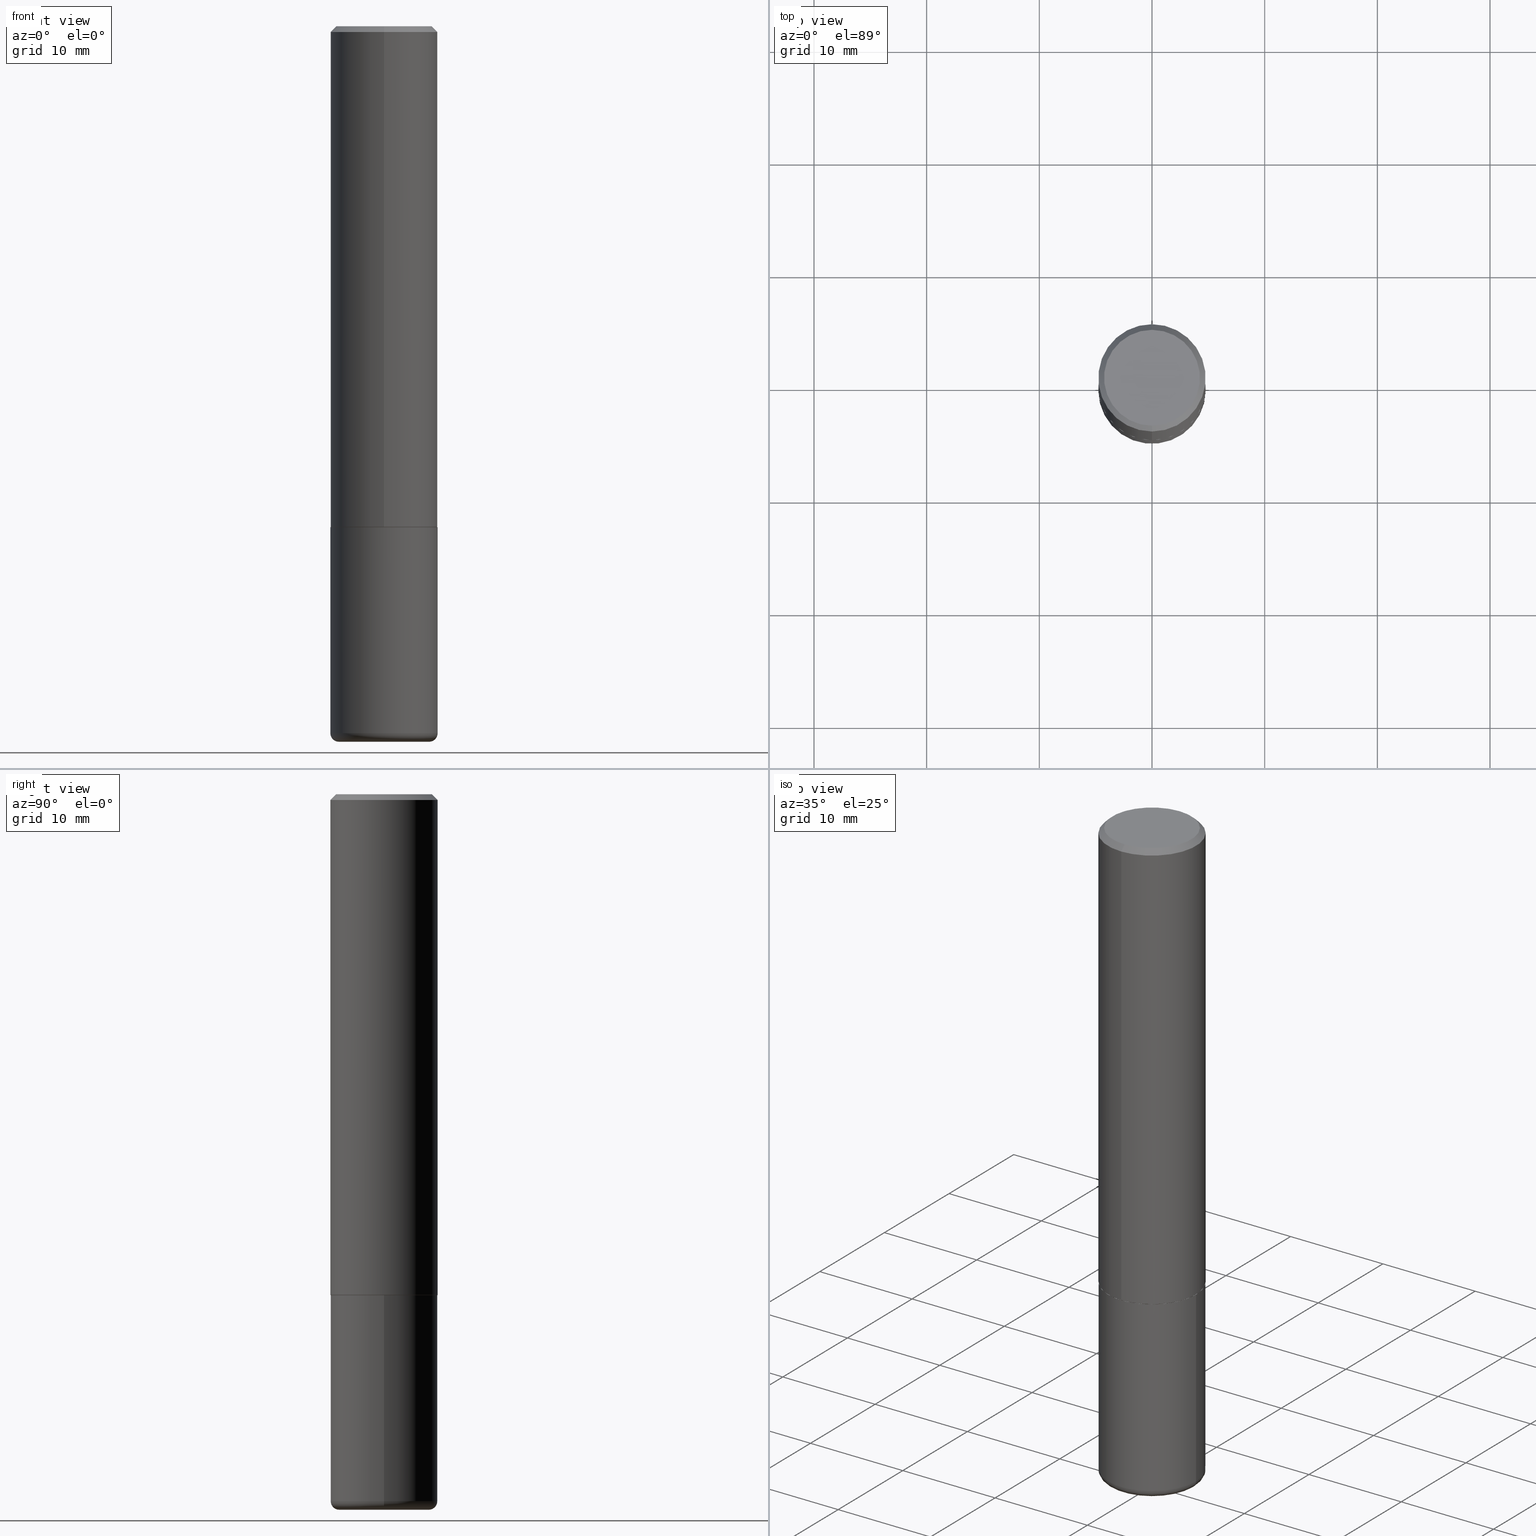
[diagram: canonical four-view strip — front | top / right | iso, engineering-drawing reading convention]
A machine part, canonical four-view strip (front | top / right | iso — engineering-drawing reading convention). The complete STEP part file that produces these views, byte-faithful:
ISO-10303-21;
HEADER;
FILE_DESCRIPTION (( 'STEP AP203' ),
    '1' );
FILE_NAME ('37175.STEP',
    '2024-03-01T21:28:06',
    ( '' ),
    ( '' ),
    'SwSTEP 2.0',
    'SolidWorks 2023',
    '' );
FILE_SCHEMA (( 'CONFIG_CONTROL_DESIGN' ));
ENDSEC;

DATA;
#1 = DIRECTION ( 'NONE',  ( -2.444650961945200818E-29, 3.492652538343536856E-15, 1.000000000000000000 ) ) ;
#2 = ADVANCED_FACE ( 'NONE', ( #392 ), #386, .T. ) ;
#3 = DATE_AND_TIME ( #26, #142 ) ;
#4 = ORIENTED_EDGE ( 'NONE', *, *, #32, .T. ) ;
#5 = EDGE_CURVE ( 'NONE', #122, #214, #298, .T. ) ;
#6 = AXIS2_PLACEMENT_3D ( 'NONE', #69, #173, #301 ) ;
#7 = CARTESIAN_POINT ( 'NONE',  ( 4.278139183404100941E-29, -6.112141942101189794E-15, -1.750000000000000000 ) ) ;
#8 = DIRECTION ( 'NONE',  ( -2.444650961945200818E-29, 3.492652538343536856E-15, 1.000000000000000000 ) ) ;
#9 = FACE_OUTER_BOUND ( 'NONE', #223, .T. ) ;
#10 = CARTESIAN_POINT ( 'NONE',  ( 0.1875000000000000555, -9.933264409008746581E-15, -2.470000000000000195 ) ) ;
#11 = FACE_OUTER_BOUND ( 'NONE', #18, .T. ) ;
#12 = DIRECTION ( 'NONE',  ( -2.445468806185136597E-29, 3.491481338843145583E-15, 1.000000000000000000 ) ) ;
#13 = PLANE ( 'NONE',  #346 ) ;
#14 = ORIENTED_EDGE ( 'NONE', *, *, #231, .F. ) ;
#15 = DIRECTION ( 'NONE',  ( -2.444650961945200818E-29, 3.492652538343536856E-15, 1.000000000000000000 ) ) ;
#16 = ORIENTED_EDGE ( 'NONE', *, *, #283, .F. ) ;
#17 = DIRECTION ( 'NONE',  ( -2.445468806185136597E-29, 3.491481338843145583E-15, 1.000000000000000000 ) ) ;
#18 = EDGE_LOOP ( 'NONE', ( #315, #280 ) ) ;
#19 = CARTESIAN_POINT ( 'NONE',  ( -1.309305502066175797E-15, -0.1875000000000001110, 6.548723509394135303E-16 ) ) ;
#20 = AXIS2_PLACEMENT_3D ( 'NONE', #359, #351, #259 ) ;
#21 = CONICAL_SURFACE ( 'NONE', #367, 0.1874999999999999722, 0.7853981633974469467 ) ;
#22 = ORIENTED_EDGE ( 'NONE', *, *, #220, .T. ) ;
#23 = PERSON_AND_ORGANIZATION ( #387, #105 ) ;
#24 = ORIENTED_EDGE ( 'NONE', *, *, #358, .T. ) ;
#25 = PRODUCT_RELATED_PRODUCT_CATEGORY ( 'detail', '', ( #240 ) ) ;
#26 = CALENDAR_DATE ( 2024, 1, 3 ) ;
#27 = DIRECTION ( 'NONE',  ( 7.105427357601001859E-15, 1.000000000000000000, -3.491481338843145583E-15 ) ) ;
#28 = CARTESIAN_POINT ( 'NONE',  ( 4.278139183404100941E-29, -6.112141942101189794E-15, -1.750000000000000000 ) ) ;
#29 = AXIS2_PLACEMENT_3D ( 'NONE', #410, #139, #370 ) ;
#30 = DATE_AND_TIME ( #254, #79 ) ;
#31 = DIRECTION ( 'NONE',  ( -4.851104656540957175E-15, -0.7071067811865490160, -0.7071067811865460184 ) ) ;
#32 = EDGE_CURVE ( 'NONE', #112, #409, #171, .T. ) ;
#33 = ORIENTED_EDGE ( 'NONE', *, *, #379, .F. ) ;
#34 = ORIENTED_EDGE ( 'NONE', *, *, #343, .F. ) ;
#35 = CARTESIAN_POINT ( 'NONE',  ( 4.275694532442156646E-29, -6.108649289562846914E-15, -1.749000000000000110 ) ) ;
#36 = DIRECTION ( 'NONE',  ( 2.444650961945200538E-29, -3.492652538343536856E-15, -1.000000000000000000 ) ) ;
#37 = FACE_OUTER_BOUND ( 'NONE', #411, .T. ) ;
#38 = AXIS2_PLACEMENT_3D ( 'NONE', #389, #27, #164 ) ;
#39 = AXIS2_PLACEMENT_3D ( 'NONE', #113, #17, #239 ) ;
#40 = LINE ( 'NONE', #98, #70 ) ;
#41 = CARTESIAN_POINT ( 'NONE',  ( 4.889301923890413792E-31, -6.985305076687091116E-17, -0.02000000000000005246 ) ) ;
#42 = LINE ( 'NONE', #206, #50 ) ;
#43 = AXIS2_PLACEMENT_3D ( 'NONE', #74, #267, #333 ) ;
#44 = ORIENTED_EDGE ( 'NONE', *, *, #32, .F. ) ;
#45 = CC_DESIGN_PERSON_AND_ORGANIZATION_ASSIGNMENT ( #153, #53, ( #157 ) ) ;
#46 = DIRECTION ( 'NONE',  ( -2.444650961945200818E-29, 3.492652538343536856E-15, 1.000000000000000000 ) ) ;
#47 = EDGE_CURVE ( 'NONE', #130, #88, #226, .T. ) ;
#48 = ORIENTED_EDGE ( 'NONE', *, *, #281, .F. ) ;
#49 = FACE_OUTER_BOUND ( 'NONE', #124, .T. ) ;
#50 = VECTOR ( 'NONE', #308, 39.37007874015748143 ) ;
#51 = VERTEX_POINT ( 'NONE', #357 ) ;
#52 = MANIFOLD_SOLID_BREP ( 'Body-Move/Copy2[2]', #57 ) ;
#53 = PERSON_AND_ORGANIZATION_ROLE ( 'classification_officer' ) ;
#54 = LINE ( 'NONE', #162, #238 ) ;
#55 = LINE ( 'NONE', #192, #261 ) ;
#56 = COORDINATED_UNIVERSAL_TIME_OFFSET ( 5, 0, .BEHIND. ) ;
#57 = CLOSED_SHELL ( 'NONE', ( #394, #318, #163, #260, #289, #71, #321, #266 ) ) ;
#58 = DIRECTION ( 'NONE',  ( -2.444650961945200818E-29, 3.492652538343536856E-15, 1.000000000000000000 ) ) ;
#59 = CONICAL_SURFACE ( 'NONE', #43, 0.1874999999999999722, 0.7853981633974469467 ) ;
#60 = CC_DESIGN_APPROVAL ( #336, ( #157 ) ) ;
#61 = PERSON_AND_ORGANIZATION_ROLE ( 'creator' ) ;
#62 = CARTESIAN_POINT ( 'NONE',  ( -1.286343374582161379E-15, -0.1875000000000000555, -0.01999999999999939673 ) ) ;
#63 = APPROVAL_STATUS ( 'not_yet_approved' ) ;
#64 = FACE_OUTER_BOUND ( 'NONE', #264, .T. ) ;
#65 = CARTESIAN_POINT ( 'NONE',  ( 6.040307951277287977E-29, -8.623958906942569995E-15, -2.470000000000000195 ) ) ;
#66 = EDGE_CURVE ( 'NONE', #277, #340, #55, .T. ) ;
#67 = DIRECTION ( 'NONE',  ( -2.445468806185136877E-29, 3.491481338843145188E-15, 1.000000000000000000 ) ) ;
#68 = DIRECTION ( 'NONE',  ( -6.982962677686266711E-15, -1.000000000000000000, 3.492652538343536856E-15 ) ) ;
#69 = CARTESIAN_POINT ( 'NONE',  ( 4.889301923890413792E-31, -6.985305076687091116E-17, -0.02000000000000005246 ) ) ;
#70 = VECTOR ( 'NONE', #328, 39.37007874015748143 ) ;
#71 = ADVANCED_FACE ( 'NONE', ( #64 ), #382, .T. ) ;
#72 = CC_DESIGN_APPROVAL ( #369, ( #129 ) ) ;
#73 = UNCERTAINTY_MEASURE_WITH_UNIT (LENGTH_MEASURE( 1.000000000000000082E-05 ), #81, 'distance_accuracy_value', 'NONE');
#74 = CARTESIAN_POINT ( 'NONE',  ( 4.889301923890413792E-31, -6.985305076687091116E-17, -0.02000000000000005246 ) ) ;
#75 = CARTESIAN_POINT ( 'NONE',  ( 0.000000000000000000, 0.000000000000000000, 0.000000000000000000 ) ) ;
#76 = CARTESIAN_POINT ( 'NONE',  ( 4.278139183404100941E-29, -6.112141942101189794E-15, -1.750000000000000000 ) ) ;
#77 = ORIENTED_EDGE ( 'NONE', *, *, #400, .F. ) ;
#78 = VECTOR ( 'NONE', #31, 39.37007874015748143 ) ;
#79 = LOCAL_TIME ( 16, 28, 6.000000000000000000, #187 ) ;
#80 = ORIENTED_EDGE ( 'NONE', *, *, #245, .T. ) ;
#81 =( CONVERSION_BASED_UNIT ( 'INCH', #337 ) LENGTH_UNIT ( ) NAMED_UNIT ( #278 ) );
#82 = VERTEX_POINT ( 'NONE', #325 ) ;
#83 = EDGE_CURVE ( 'NONE', #207, #409, #54, .T. ) ;
#84 =( LENGTH_UNIT ( ) NAMED_UNIT ( * ) SI_UNIT ( $, .METRE. ) );
#85 = ORIENTED_EDGE ( 'NONE', *, *, #379, .T. ) ;
#86 = CALENDAR_DATE ( 2024, 1, 3 ) ;
#87 = CIRCLE ( 'NONE', #268, 0.1864999999999999714 ) ;
#88 = VERTEX_POINT ( 'NONE', #290 ) ;
#89 = CC_DESIGN_SECURITY_CLASSIFICATION ( #157, ( #376 ) ) ;
#90 = CALENDAR_DATE ( 2024, 1, 3 ) ;
#91 = ORIENTED_EDGE ( 'NONE', *, *, #147, .T. ) ;
#92 = APPLICATION_CONTEXT ( 'configuration controlled 3d designs of mechanical parts and assemblies' ) ;
#93 = CARTESIAN_POINT ( 'NONE',  ( 0.1575000000000000289, -9.828519968843451634E-15, -2.500000000000000000 ) ) ;
#94 = DIRECTION ( 'NONE',  ( -2.445468806185136597E-29, 3.491481338843145583E-15, 1.000000000000000000 ) ) ;
#95 = AXIS2_PLACEMENT_3D ( 'NONE', #131, #198, #402 ) ;
#96 = CARTESIAN_POINT ( 'NONE',  ( 0.000000000000000000, 0.000000000000000000, 0.000000000000000000 ) ) ;
#97 = ORIENTED_EDGE ( 'NONE', *, *, #47, .F. ) ;
#98 = CARTESIAN_POINT ( 'NONE',  ( 1.332267629550188440E-15, 0.1875000000000001110, -6.548723509394135303E-16 ) ) ;
#99 = FACE_OUTER_BOUND ( 'NONE', #150, .T. ) ;
#100 = VECTOR ( 'NONE', #67, 39.37007874015748143 ) ;
#101 = CARTESIAN_POINT ( 'NONE',  ( 0.000000000000000000, 0.000000000000000000, 0.000000000000000000 ) ) ;
#102 = CYLINDRICAL_SURFACE ( 'NONE', #172, 0.1875000000000001110 ) ;
#103 = CC_DESIGN_PERSON_AND_ORGANIZATION_ASSIGNMENT ( #116, #195, ( #129 ) ) ;
#104 = AXIS2_PLACEMENT_3D ( 'NONE', #175, #149, #244 ) ;
#105 = ORGANIZATION ( 'UNSPECIFIED', 'UNSPECIFIED', '' ) ;
#106 = CARTESIAN_POINT ( 'NONE',  ( 1.332267629550210528E-15, 0.1874999999999941713, -1.749000000000000554 ) ) ;
#107 = CARTESIAN_POINT ( 'NONE',  ( 1.325162202192629242E-15, 0.1864999999999938651, -1.750000000000000444 ) ) ;
#108 = ORIENTED_EDGE ( 'NONE', *, *, #5, .T. ) ;
#109 = VERTEX_POINT ( 'NONE', #93 ) ;
#110 = AXIS2_PLACEMENT_3D ( 'NONE', #188, #291, #230 ) ;
#111 = AXIS2_PLACEMENT_3D ( 'NONE', #185, #314, #377 ) ;
#112 = VERTEX_POINT ( 'NONE', #294 ) ;
#113 = CARTESIAN_POINT ( 'NONE',  ( 6.040307951277287977E-29, -8.623958906942569995E-15, -2.470000000000000195 ) ) ;
#114 = EDGE_LOOP ( 'NONE', ( #320, #324, #250, #309 ) ) ;
#115 = CC_DESIGN_PERSON_AND_ORGANIZATION_ASSIGNMENT ( #388, #61, ( #376 ) ) ;
#116 = PERSON_AND_ORGANIZATION ( #387, #105 ) ;
#117 = EDGE_LOOP ( 'NONE', ( #186, #4 ) ) ;
#118 = DATE_AND_TIME ( #90, #313 ) ;
#119 = AXIS2_PLACEMENT_3D ( 'NONE', #233, #297, #270 ) ;
#120 = CARTESIAN_POINT ( 'NONE',  ( -1.286343374582161379E-15, -0.1875000000000000555, -0.01999999999999939673 ) ) ;
#121 = EDGE_CURVE ( 'NONE', #277, #292, #87, .T. ) ;
#122 = VERTEX_POINT ( 'NONE', #120 ) ;
#123 = DIRECTION ( 'NONE',  ( 0.000000000000000000, 0.000000000000000000, 1.000000000000000000 ) ) ;
#124 = EDGE_LOOP ( 'NONE', ( #285, #177 ) ) ;
#125 = ADVANCED_FACE ( 'NONE', ( #418 ), #274, .T. ) ;
#126 = DATE_AND_TIME ( #86, #247 ) ;
#127 = ORIENTED_EDGE ( 'NONE', *, *, #295, .T. ) ;
#128 = AXIS2_PLACEMENT_3D ( 'NONE', #35, #8, #237 ) ;
#129 = PRODUCT_DEFINITION ( 'UNKNOWN', '', #376, #401 ) ;
#130 = VERTEX_POINT ( 'NONE', #225 ) ;
#131 = CARTESIAN_POINT ( 'NONE',  ( 6.113672015462842613E-29, -8.728703347107864943E-15, -2.500000000000000000 ) ) ;
#132 = EDGE_CURVE ( 'NONE', #51, #122, #323, .T. ) ;
#133 = PLANE ( 'NONE',  #141 ) ;
#134 = CIRCLE ( 'NONE', #362, 0.02999999999999998848 ) ;
#135 =( GEOMETRIC_REPRESENTATION_CONTEXT ( 3 ) GLOBAL_UNCERTAINTY_ASSIGNED_CONTEXT ( ( #73 ) ) GLOBAL_UNIT_ASSIGNED_CONTEXT ( ( #81, #373, #407 ) ) REPRESENTATION_CONTEXT ( 'NONE', 'WORKASPACE' ) );
#136 = DIRECTION ( 'NONE',  ( -2.445468806185136597E-29, 3.491481338843145583E-15, 1.000000000000000000 ) ) ;
#137 = ADVANCED_FACE ( 'NONE', ( #11 ), #327, .T. ) ;
#138 = DIRECTION ( 'NONE',  ( -1.000000000000000000, 6.982962677686265922E-15, -4.876176775795935793E-29 ) ) ;
#139 = DIRECTION ( 'NONE',  ( -2.444650961945200818E-29, 3.492652538343536856E-15, 1.000000000000000000 ) ) ;
#140 = CC_DESIGN_DATE_AND_TIME_ASSIGNMENT ( #30, #319, ( #157 ) ) ;
#141 = AXIS2_PLACEMENT_3D ( 'NONE', #200, #36, #269 ) ;
#142 = LOCAL_TIME ( 16, 28, 6.000000000000000000, #322 ) ;
#143 = ORIENTED_EDGE ( 'NONE', *, *, #209, .F. ) ;
#144 = CARTESIAN_POINT ( 'NONE',  ( 0.1875000000000000278, -7.419397845041680468E-15, -1.750000000000000222 ) ) ;
#145 = ORIENTED_EDGE ( 'NONE', *, *, #83, .F. ) ;
#146 = DIRECTION ( 'NONE',  ( -1.000000000000000000, 6.982962677686265922E-15, -4.876176775795935793E-29 ) ) ;
#147 = EDGE_CURVE ( 'NONE', #340, #378, #246, .T. ) ;
#148 = CIRCLE ( 'NONE', #95, 0.1575000000000000289 ) ;
#149 = DIRECTION ( 'NONE',  ( -2.445468806185136597E-29, 3.491481338843145583E-15, 1.000000000000000000 ) ) ;
#150 = EDGE_LOOP ( 'NONE', ( #305, #255 ) ) ;
#151 = APPROVAL_ROLE ( '' ) ;
#152 = EDGE_LOOP ( 'NONE', ( #91, #180, #212, #406 ) ) ;
#153 = PERSON_AND_ORGANIZATION ( #387, #105 ) ;
#154 = DIRECTION ( 'NONE',  ( -2.445468806185136877E-29, 3.491481338843145188E-15, 1.000000000000000000 ) ) ;
#155 = APPROVAL_STATUS ( 'not_yet_approved' ) ;
#156 = AXIS2_PLACEMENT_3D ( 'NONE', #249, #46, #344 ) ;
#157 = SECURITY_CLASSIFICATION ( '', '', #347 ) ;
#158 = DIRECTION ( 'NONE',  ( -2.444650961945200818E-29, 3.492652538343536856E-15, 1.000000000000000000 ) ) ;
#159 = DATE_TIME_ROLE ( 'creation_date' ) ;
#160 = ORIENTED_EDGE ( 'NONE', *, *, #272, .F. ) ;
#161 = APPROVAL_STATUS ( 'not_yet_approved' ) ;
#162 = CARTESIAN_POINT ( 'NONE',  ( 0.1875000000000000555, -1.309305502066175205E-15, 9.142831454617382414E-30 ) ) ;
#163 = ADVANCED_FACE ( 'NONE', ( #37 ), #59, .T. ) ;
#164 = DIRECTION ( 'NONE',  ( -1.000000000000000000, 7.105427357600993970E-15, 0.000000000000000000 ) ) ;
#165 = AXIS2_PLACEMENT_3D ( 'NONE', #352, #94, #229 ) ;
#166 = LOCAL_TIME ( 16, 28, 6.000000000000000000, #284 ) ;
#167 = FACE_OUTER_BOUND ( 'NONE', #183, .T. ) ;
#168 = CARTESIAN_POINT ( 'NONE',  ( 5.943167387624159977E-45, -8.490953917474353626E-31, -2.431090360194079171E-16 ) ) ;
#169 = CC_DESIGN_PERSON_AND_ORGANIZATION_ASSIGNMENT ( #380, #219, ( #376 ) ) ;
#170 = DIRECTION ( 'NONE',  ( 1.000000000000000000, -6.982962677686265922E-15, 0.000000000000000000 ) ) ;
#171 = CIRCLE ( 'NONE', #20, 0.1875000000000000278 ) ;
#172 = AXIS2_PLACEMENT_3D ( 'NONE', #101, #365, #68 ) ;
#173 = DIRECTION ( 'NONE',  ( -2.444650961945200818E-29, 3.492652538343536856E-15, 1.000000000000000000 ) ) ;
#174 = DIRECTION ( 'NONE',  ( 6.982962677686266711E-15, 1.000000000000000000, -3.483106191921935949E-15 ) ) ;
#175 = CARTESIAN_POINT ( 'NONE',  ( 6.113672015462842613E-29, -8.728703347107864943E-15, -2.500000000000000000 ) ) ;
#176 = PRODUCT_DEFINITION_SHAPE ( 'NONE', 'NONE',  #129 ) ;
#177 = ORIENTED_EDGE ( 'NONE', *, *, #295, .F. ) ;
#178 = CC_DESIGN_APPROVAL ( #196, ( #376 ) ) ;
#179 = DIRECTION ( 'NONE',  ( 1.000000000000000000, -6.982962677686270655E-15, 0.000000000000000000 ) ) ;
#180 = ORIENTED_EDGE ( 'NONE', *, *, #209, .T. ) ;
#181 = DIRECTION ( 'NONE',  ( 2.438088387897960049E-29, -3.491481338843145188E-15, -1.000000000000000000 ) ) ;
#182 = ORIENTED_EDGE ( 'NONE', *, *, #66, .F. ) ;
#183 = EDGE_LOOP ( 'NONE', ( #251, #16, #345, #342 ) ) ;
#184 = AXIS2_PLACEMENT_3D ( 'NONE', #302, #12, #296 ) ;
#185 = CARTESIAN_POINT ( 'NONE',  ( 4.278139183404102062E-29, -6.112141942101190583E-15, -1.750000000000000222 ) ) ;
#186 = ORIENTED_EDGE ( 'NONE', *, *, #272, .T. ) ;
#187 = COORDINATED_UNIVERSAL_TIME_OFFSET ( 5, 0, .BEHIND. ) ;
#188 = CARTESIAN_POINT ( 'NONE',  ( 0.000000000000000000, 0.000000000000000000, 0.000000000000000000 ) ) ;
#189 = ORIENTED_EDGE ( 'NONE', *, *, #242, .T. ) ;
#190 = DIRECTION ( 'NONE',  ( 1.000000000000000000, 0.000000000000000000, 0.000000000000000000 ) ) ;
#191 = AXIS2_PLACEMENT_3D ( 'NONE', #363, #399, #138 ) ;
#192 = CARTESIAN_POINT ( 'NONE',  ( -1.302322539388445804E-15, -0.1865000000000060776, -1.749999999999999334 ) ) ;
#193 = APPROVAL_ROLE ( '' ) ;
#194 = EDGE_LOOP ( 'NONE', ( #248, #85, #279, #44 ) ) ;
#195 = PERSON_AND_ORGANIZATION_ROLE ( 'creator' ) ;
#196 = APPROVAL ( #155, 'UNSPECIFIED' ) ;
#197 = DIRECTION ( 'NONE',  ( -4.937700262165812586E-15, -0.7071067811867262076, 0.7071067811863689379 ) ) ;
#198 = DIRECTION ( 'NONE',  ( -2.445468806185136597E-29, 3.491481338843145583E-15, 1.000000000000000000 ) ) ;
#199 = CIRCLE ( 'NONE', #6, 0.1874999999999999722 ) ;
#200 = CARTESIAN_POINT ( 'NONE',  ( 1.169646248512450976E-15, 0.1675000000000002320, -7.065738181822472063E-16 ) ) ;
#201 = CARTESIAN_POINT ( 'NONE',  ( 1.328714915871430535E-15, 0.1864999999999938651, -1.750000000000000444 ) ) ;
#202 = DIRECTION ( 'NONE',  ( -6.982962677686265922E-15, -1.000000000000000000, 2.929595703661408850E-15 ) ) ;
#203 = CIRCLE ( 'NONE', #119, 0.1675000000000002320 ) ;
#204 = DIRECTION ( 'NONE',  ( 1.000000000000000000, -6.982962677686267499E-15, 4.883557194083113462E-29 ) ) ;
#205 = CARTESIAN_POINT ( 'NONE',  ( 0.1575000000000000289, -9.723775528678158264E-15, -2.470000000000000195 ) ) ;
#206 = CARTESIAN_POINT ( 'NONE',  ( 1.309305502066175205E-15, 0.1874999999999999167, -0.02000000000000070471 ) ) ;
#207 = VERTEX_POINT ( 'NONE', #10 ) ;
#208 = CLOSED_SHELL ( 'NONE', ( #2, #257, #414, #303, #125, #137 ) ) ;
#209 = EDGE_CURVE ( 'NONE', #378, #214, #40, .T. ) ;
#210 = CIRCLE ( 'NONE', #29, 0.1875000000000002776 ) ;
#211 = DIRECTION ( 'NONE',  ( -2.445468806185136597E-29, 3.491481338843145583E-15, 1.000000000000000000 ) ) ;
#212 = ORIENTED_EDGE ( 'NONE', *, *, #5, .F. ) ;
#213 = CC_DESIGN_PERSON_AND_ORGANIZATION_ASSIGNMENT ( #224, #222, ( #240 ) ) ;
#214 = VERTEX_POINT ( 'NONE', #393 ) ;
#215 = DIRECTION ( 'NONE',  ( 1.000000000000000000, -6.982962677686265922E-15, 4.876176775795935793E-29 ) ) ;
#216 = ORIENTED_EDGE ( 'NONE', *, *, #132, .T. ) ;
#217 = ADVANCED_BREP_SHAPE_REPRESENTATION ( '37175', ( #329, #52, #253 ), #135 ) ;
#218 = CIRCLE ( 'NONE', #184, 0.1875000000000000278 ) ;
#219 = PERSON_AND_ORGANIZATION_ROLE ( 'design_supplier' ) ;
#220 = EDGE_CURVE ( 'NONE', #207, #88, #288, .T. ) ;
#221 = ORIENTED_EDGE ( 'NONE', *, *, #349, .T. ) ;
#222 = PERSON_AND_ORGANIZATION_ROLE ( 'design_owner' ) ;
#223 = EDGE_LOOP ( 'NONE', ( #143, #311, #335, #48 ) ) ;
#224 = PERSON_AND_ORGANIZATION ( #387, #105 ) ;
#225 = CARTESIAN_POINT ( 'NONE',  ( -0.1575000000000000289, -7.450644907839044743E-15, -2.500000000000000000 ) ) ;
#226 = CIRCLE ( 'NONE', #38, 0.02999999999999998848 ) ;
#227 = MECHANICAL_CONTEXT ( 'NONE', #355, 'mechanical' ) ;
#228 = CIRCLE ( 'NONE', #39, 0.1875000000000000555 ) ;
#229 = DIRECTION ( 'NONE',  ( 1.000000000000000000, -6.982962677686267499E-15, 4.883557194083113462E-29 ) ) ;
#230 = DIRECTION ( 'NONE',  ( 1.000000000000000000, -6.982962677686265922E-15, 4.876176775795935793E-29 ) ) ;
#231 = EDGE_CURVE ( 'NONE', #51, #82, #299, .T. ) ;
#232 = DIRECTION ( 'NONE',  ( -2.444650961945200818E-29, 3.492652538343536856E-15, 1.000000000000000000 ) ) ;
#233 = CARTESIAN_POINT ( 'NONE',  ( 5.943167387624159977E-45, -8.490953917474353626E-31, -2.431090360194079171E-16 ) ) ;
#234 = APPROVAL_PERSON_ORGANIZATION ( #316, #336, #193 ) ;
#235 = DIRECTION ( 'NONE',  ( -2.445468806185136597E-29, 3.491481338843145583E-15, 1.000000000000000000 ) ) ;
#236 = DIRECTION ( 'NONE',  ( -2.444650961945200818E-29, 3.492652538343536856E-15, 1.000000000000000000 ) ) ;
#237 = DIRECTION ( 'NONE',  ( -6.982962677686266711E-15, -1.000000000000000000, 2.913971193241876428E-15 ) ) ;
#238 = VECTOR ( 'NONE', #154, 39.37007874015748143 ) ;
#239 = DIRECTION ( 'NONE',  ( 1.000000000000000000, -6.982962677686265922E-15, 0.000000000000000000 ) ) ;
#240 = PRODUCT ( '37175', '37175', '', ( #227 ) ) ;
#241 = CYLINDRICAL_SURFACE ( 'NONE', #156, 0.1875000000000001110 ) ;
#242 = EDGE_CURVE ( 'NONE', #130, #109, #148, .T. ) ;
#243 = ORIENTED_EDGE ( 'NONE', *, *, #121, .T. ) ;
#244 = DIRECTION ( 'NONE',  ( 1.000000000000000000, -6.982962677686267499E-15, 0.000000000000000000 ) ) ;
#245 = EDGE_CURVE ( 'NONE', #88, #112, #368, .T. ) ;
#246 = CIRCLE ( 'NONE', #128, 0.1875000000000002776 ) ;
#247 = LOCAL_TIME ( 16, 28, 6.000000000000000000, #56 ) ;
#248 = ORIENTED_EDGE ( 'NONE', *, *, #245, .F. ) ;
#249 = CARTESIAN_POINT ( 'NONE',  ( 0.000000000000000000, 0.000000000000000000, 0.000000000000000000 ) ) ;
#250 = ORIENTED_EDGE ( 'NONE', *, *, #220, .F. ) ;
#251 = ORIENTED_EDGE ( 'NONE', *, *, #132, .F. ) ;
#252 = AXIS2_PLACEMENT_3D ( 'NONE', #168, #232, #265 ) ;
#253 = AXIS2_PLACEMENT_3D ( 'NONE', #96, #123, #190 ) ;
#254 = CALENDAR_DATE ( 2024, 1, 3 ) ;
#255 = ORIENTED_EDGE ( 'NONE', *, *, #231, .T. ) ;
#256 = APPLICATION_PROTOCOL_DEFINITION ( 'international standard', 'config_control_design', 1994, #92 ) ;
#257 = ADVANCED_FACE ( 'NONE', ( #395 ), #408, .T. ) ;
#258 = APPROVAL_ROLE ( '' ) ;
#259 = DIRECTION ( 'NONE',  ( 1.000000000000000000, -6.982962677686266711E-15, 0.000000000000000000 ) ) ;
#260 = ADVANCED_FACE ( 'NONE', ( #167 ), #21, .T. ) ;
#261 = VECTOR ( 'NONE', #197, 39.37007874015748143 ) ;
#262 = PERSON_AND_ORGANIZATION ( #387, #105 ) ;
#263 = AXIS2_PLACEMENT_3D ( 'NONE', #28, #158, #416 ) ;
#264 = EDGE_LOOP ( 'NONE', ( #413, #127, #372, #34 ) ) ;
#265 = DIRECTION ( 'NONE',  ( -6.982962677686265133E-15, -1.000000000000000000, 3.492652538343536856E-15 ) ) ;
#266 = ADVANCED_FACE ( 'NONE', ( #99 ), #133, .F. ) ;
#267 = DIRECTION ( 'NONE',  ( 2.444650961945200818E-29, -3.492652538343536856E-15, -1.000000000000000000 ) ) ;
#268 = AXIS2_PLACEMENT_3D ( 'NONE', #7, #1, #381 ) ;
#269 = DIRECTION ( 'NONE',  ( 6.982962677686265922E-15, 1.000000000000000000, -3.492652538343536856E-15 ) ) ;
#270 = DIRECTION ( 'NONE',  ( -6.982962677686265133E-15, -1.000000000000000000, 3.492652538343536856E-15 ) ) ;
#271 = CARTESIAN_POINT ( 'NONE',  ( 6.040307951277287977E-29, -8.623958906942569995E-15, -2.470000000000000195 ) ) ;
#272 = EDGE_CURVE ( 'NONE', #409, #112, #218, .T. ) ;
#273 = PLANE ( 'NONE',  #111 ) ;
#274 = TOROIDAL_SURFACE ( 'NONE', #165, 0.1575000000000000289, 0.02999999999999998848 ) ;
#275 = APPROVAL_PERSON_ORGANIZATION ( #23, #196, #151 ) ;
#276 = CARTESIAN_POINT ( 'NONE',  ( 4.279570410823989044E-29, -6.110092342975505460E-15, -1.750000000000000222 ) ) ;
#277 = VERTEX_POINT ( 'NONE', #397 ) ;
#278 = DIMENSIONAL_EXPONENTS ( 1.000000000000000000, 0.000000000000000000, 0.000000000000000000, 0.000000000000000000, 0.000000000000000000, 0.000000000000000000, 0.000000000000000000 ) ;
#279 = ORIENTED_EDGE ( 'NONE', *, *, #83, .T. ) ;
#280 = ORIENTED_EDGE ( 'NONE', *, *, #242, .F. ) ;
#281 = EDGE_CURVE ( 'NONE', #214, #122, #199, .T. ) ;
#282 = DIRECTION ( 'NONE',  ( -6.982962677686266711E-15, -1.000000000000000000, 3.491481338843145583E-15 ) ) ;
#283 = EDGE_CURVE ( 'NONE', #82, #51, #203, .T. ) ;
#284 = COORDINATED_UNIVERSAL_TIME_OFFSET ( 5, 0, .BEHIND. ) ;
#285 = ORIENTED_EDGE ( 'NONE', *, *, #121, .F. ) ;
#286 = COORDINATED_UNIVERSAL_TIME_OFFSET ( 5, 0, .BEHIND. ) ;
#287 = ORIENTED_EDGE ( 'NONE', *, *, #147, .F. ) ;
#288 = CIRCLE ( 'NONE', #306, 0.1875000000000000555 ) ;
#289 = ADVANCED_FACE ( 'NONE', ( #9 ), #102, .T. ) ;
#290 = CARTESIAN_POINT ( 'NONE',  ( -0.1875000000000000555, -7.291691277392382147E-15, -2.470000000000000195 ) ) ;
#291 = DIRECTION ( 'NONE',  ( -2.445468806185136597E-29, 3.491481338843145583E-15, 1.000000000000000000 ) ) ;
#292 = VERTEX_POINT ( 'NONE', #201 ) ;
#293 = CIRCLE ( 'NONE', #104, 0.1575000000000000289 ) ;
#294 = CARTESIAN_POINT ( 'NONE',  ( -0.1875000000000000278, -6.034757995408849879E-15, -1.750000000000000222 ) ) ;
#295 = EDGE_CURVE ( 'NONE', #292, #277, #417, .T. ) ;
#296 = DIRECTION ( 'NONE',  ( 1.000000000000000000, -6.982962677686266711E-15, 0.000000000000000000 ) ) ;
#297 = DIRECTION ( 'NONE',  ( -2.444650961945200818E-29, 3.492652538343536856E-15, 1.000000000000000000 ) ) ;
#298 = CIRCLE ( 'NONE', #353, 0.1874999999999999722 ) ;
#299 = CIRCLE ( 'NONE', #252, 0.1675000000000002320 ) ;
#300 = CARTESIAN_POINT ( 'NONE',  ( -0.1875000000000000555, 1.332267629550188243E-15, -9.223003294227950793E-30 ) ) ;
#301 = DIRECTION ( 'NONE',  ( -6.982962677686266711E-15, -1.000000000000000000, 3.483106191921935949E-15 ) ) ;
#302 = CARTESIAN_POINT ( 'NONE',  ( 4.279570410823989044E-29, -6.110092342975505460E-15, -1.750000000000000222 ) ) ;
#303 = ADVANCED_FACE ( 'NONE', ( #366 ), #332, .T. ) ;
#304 = FACE_OUTER_BOUND ( 'NONE', #117, .T. ) ;
#305 = ORIENTED_EDGE ( 'NONE', *, *, #283, .T. ) ;
#306 = AXIS2_PLACEMENT_3D ( 'NONE', #271, #235, #170 ) ;
#307 = APPROVAL_PERSON_ORGANIZATION ( #262, #369, #258 ) ;
#308 = DIRECTION ( 'NONE',  ( 4.937700262164540942E-15, 0.7071067811865441310, -0.7071067811865509034 ) ) ;
#309 = ORIENTED_EDGE ( 'NONE', *, *, #349, .F. ) ;
#310 = FACE_OUTER_BOUND ( 'NONE', #375, .T. ) ;
#311 = ORIENTED_EDGE ( 'NONE', *, *, #343, .T. ) ;
#312 = LINE ( 'NONE', #107, #361 ) ;
#313 = LOCAL_TIME ( 16, 28, 6.000000000000000000, #286 ) ;
#314 = DIRECTION ( 'NONE',  ( -2.444650961945200538E-29, 3.492652538343536856E-15, 1.000000000000000000 ) ) ;
#315 = ORIENTED_EDGE ( 'NONE', *, *, #405, .F. ) ;
#316 = PERSON_AND_ORGANIZATION ( #387, #105 ) ;
#317 = DIRECTION ( 'NONE',  ( -6.982962677686266711E-15, -1.000000000000000000, 3.483106191921935949E-15 ) ) ;
#318 = ADVANCED_FACE ( 'NONE', ( #341 ), #241, .T. ) ;
#319 = DATE_TIME_ROLE ( 'classification_date' ) ;
#320 = ORIENTED_EDGE ( 'NONE', *, *, #405, .T. ) ;
#321 = ADVANCED_FACE ( 'NONE', ( #49 ), #273, .F. ) ;
#322 = COORDINATED_UNIVERSAL_TIME_OFFSET ( 5, 0, .BEHIND. ) ;
#323 = LINE ( 'NONE', #62, #78 ) ;
#324 = ORIENTED_EDGE ( 'NONE', *, *, #47, .T. ) ;
#325 = CARTESIAN_POINT ( 'NONE',  ( 1.239475875289313091E-15, 0.1675000000000002320, -8.281283361919508936E-16 ) ) ;
#326 = AXIS2_PLACEMENT_3D ( 'NONE', #330, #236, #202 ) ;
#327 = PLANE ( 'NONE',  #191 ) ;
#328 = DIRECTION ( 'NONE',  ( -2.444650961945200818E-29, 3.492652538343536856E-15, 1.000000000000000000 ) ) ;
#329 = MANIFOLD_SOLID_BREP ( 'Body-Move/Copy2[1]', #208 ) ;
#330 = CARTESIAN_POINT ( 'NONE',  ( 4.278139183404100941E-29, -6.112141942101189794E-15, -1.750000000000000000 ) ) ;
#331 = VECTOR ( 'NONE', #339, 39.37007874015748143 ) ;
#332 = CYLINDRICAL_SURFACE ( 'NONE', #354, 0.1875000000000000555 ) ;
#333 = DIRECTION ( 'NONE',  ( 6.982962677686266711E-15, 1.000000000000000000, -3.483106191921935949E-15 ) ) ;
#334 = DIRECTION ( 'NONE',  ( -6.982962677686265922E-15, -1.000000000000000000, 2.929595703661408850E-15 ) ) ;
#335 = ORIENTED_EDGE ( 'NONE', *, *, #364, .T. ) ;
#336 = APPROVAL ( #161, 'UNSPECIFIED' ) ;
#337 = LENGTH_MEASURE_WITH_UNIT ( LENGTH_MEASURE( 0.02539999999999999897 ), #84 );
#338 = EDGE_LOOP ( 'NONE', ( #97, #189, #221, #33 ) ) ;
#339 = DIRECTION ( 'NONE',  ( -2.444650961945200818E-29, 3.492652538343536856E-15, 1.000000000000000000 ) ) ;
#340 = VERTEX_POINT ( 'NONE', #371 ) ;
#341 = FACE_OUTER_BOUND ( 'NONE', #152, .T. ) ;
#342 = ORIENTED_EDGE ( 'NONE', *, *, #281, .T. ) ;
#343 = EDGE_CURVE ( 'NONE', #378, #340, #210, .T. ) ;
#344 = DIRECTION ( 'NONE',  ( -6.982962677686266711E-15, -1.000000000000000000, 3.492652538343536856E-15 ) ) ;
#345 = ORIENTED_EDGE ( 'NONE', *, *, #400, .T. ) ;
#346 = AXIS2_PLACEMENT_3D ( 'NONE', #276, #181, #146 ) ;
#347 = SECURITY_CLASSIFICATION_LEVEL ( 'unclassified' ) ;
#348 = EDGE_LOOP ( 'NONE', ( #22, #80, #160, #145 ) ) ;
#349 = EDGE_CURVE ( 'NONE', #109, #207, #134, .T. ) ;
#350 = SHAPE_DEFINITION_REPRESENTATION ( #176, #217 ) ;
#351 = DIRECTION ( 'NONE',  ( -2.445468806185136597E-29, 3.491481338843145583E-15, 1.000000000000000000 ) ) ;
#352 = CARTESIAN_POINT ( 'NONE',  ( 6.040307951277287977E-29, -8.623958906942569995E-15, -2.470000000000000195 ) ) ;
#353 = AXIS2_PLACEMENT_3D ( 'NONE', #384, #58, #317 ) ;
#354 = AXIS2_PLACEMENT_3D ( 'NONE', #75, #211, #215 ) ;
#355 = APPLICATION_CONTEXT ( 'configuration controlled 3d designs of mechanical parts and assemblies' ) ;
#356 = APPROVAL_DATE_TIME ( #412, #196 ) ;
#357 = CARTESIAN_POINT ( 'NONE',  ( -1.217738394604447231E-15, -0.1675000000000002320, 3.419102641531351581E-16 ) ) ;
#358 = EDGE_CURVE ( 'NONE', #292, #378, #312, .T. ) ;
#359 = CARTESIAN_POINT ( 'NONE',  ( 4.279570410823989044E-29, -6.110092342975505460E-15, -1.750000000000000222 ) ) ;
#360 = DIRECTION ( 'NONE',  ( 2.444650961945200818E-29, -3.492652538343536856E-15, -1.000000000000000000 ) ) ;
#361 = VECTOR ( 'NONE', #404, 39.37007874015748143 ) ;
#362 = AXIS2_PLACEMENT_3D ( 'NONE', #205, #282, #179 ) ;
#363 = CARTESIAN_POINT ( 'NONE',  ( 6.113672015462842613E-29, -8.728703347107864943E-15, -2.500000000000000000 ) ) ;
#364 = EDGE_CURVE ( 'NONE', #340, #122, #403, .T. ) ;
#365 = DIRECTION ( 'NONE',  ( -2.444650961945200818E-29, 3.492652538343536856E-15, 1.000000000000000000 ) ) ;
#366 = FACE_OUTER_BOUND ( 'NONE', #194, .T. ) ;
#367 = AXIS2_PLACEMENT_3D ( 'NONE', #41, #360, #174 ) ;
#368 = LINE ( 'NONE', #300, #100 ) ;
#369 = APPROVAL ( #63, 'UNSPECIFIED' ) ;
#370 = DIRECTION ( 'NONE',  ( -6.982962677686266711E-15, -1.000000000000000000, 2.913971193241876428E-15 ) ) ;
#371 = CARTESIAN_POINT ( 'NONE',  ( -1.309305502066134185E-15, -0.1875000000000064115, -1.748999999999999666 ) ) ;
#372 = ORIENTED_EDGE ( 'NONE', *, *, #66, .T. ) ;
#373 =( NAMED_UNIT ( * ) PLANE_ANGLE_UNIT ( ) SI_UNIT ( $, .RADIAN. ) );
#374 = CONICAL_SURFACE ( 'NONE', #390, 0.1864999999999999714, 0.7853981633977044075 ) ;
#375 = EDGE_LOOP ( 'NONE', ( #243, #24, #287, #182 ) ) ;
#376 = PRODUCT_DEFINITION_FORMATION_WITH_SPECIFIED_SOURCE ( 'ANY', '', #240, .NOT_KNOWN. ) ;
#377 = DIRECTION ( 'NONE',  ( -6.982962677686265922E-15, -1.000000000000000000, 3.492652538343536856E-15 ) ) ;
#378 = VERTEX_POINT ( 'NONE', #106 ) ;
#379 = EDGE_CURVE ( 'NONE', #88, #207, #228, .T. ) ;
#380 = PERSON_AND_ORGANIZATION ( #387, #105 ) ;
#381 = DIRECTION ( 'NONE',  ( -6.982962677686265922E-15, -1.000000000000000000, 2.929595703661408850E-15 ) ) ;
#382 = CONICAL_SURFACE ( 'NONE', #263, 0.1864999999999999714, 0.7853981633977044075 ) ;
#383 = APPROVAL_DATE_TIME ( #118, #336 ) ;
#384 = CARTESIAN_POINT ( 'NONE',  ( 4.889301923890413792E-31, -6.985305076687091116E-17, -0.02000000000000005246 ) ) ;
#385 = CALENDAR_DATE ( 2024, 1, 3 ) ;
#386 = CYLINDRICAL_SURFACE ( 'NONE', #110, 0.1875000000000000555 ) ;
#387 = PERSON ( 'UNSPECIFIED', 'UNSPECIFIED', 'UNSPECIFIED', ('UNSPECIFIED'), ('UNSPECIFIED'), ('UNSPECIFIED') ) ;
#388 = PERSON_AND_ORGANIZATION ( #387, #105 ) ;
#389 = CARTESIAN_POINT ( 'NONE',  ( -0.1575000000000000289, -7.504854098120412392E-15, -2.470000000000000195 ) ) ;
#390 = AXIS2_PLACEMENT_3D ( 'NONE', #76, #15, #334 ) ;
#391 = APPROVAL_DATE_TIME ( #3, #369 ) ;
#392 = FACE_OUTER_BOUND ( 'NONE', #348, .T. ) ;
#393 = CARTESIAN_POINT ( 'NONE',  ( 1.309305502066175205E-15, 0.1874999999999999167, -0.02000000000000070471 ) ) ;
#394 = ADVANCED_FACE ( 'NONE', ( #310 ), #374, .T. ) ;
#395 = FACE_OUTER_BOUND ( 'NONE', #114, .T. ) ;
#396 = AXIS2_PLACEMENT_3D ( 'NONE', #65, #136, #204 ) ;
#397 = CARTESIAN_POINT ( 'NONE',  ( -1.302322539388445804E-15, -0.1865000000000060776, -1.749999999999999334 ) ) ;
#398 = CC_DESIGN_DATE_AND_TIME_ASSIGNMENT ( #126, #159, ( #129 ) ) ;
#399 = DIRECTION ( 'NONE',  ( 2.438088387897960049E-29, -3.491481338843145188E-15, -1.000000000000000000 ) ) ;
#400 = EDGE_CURVE ( 'NONE', #82, #214, #42, .T. ) ;
#401 = DESIGN_CONTEXT ( 'detailed design', #92, 'design' ) ;
#402 = DIRECTION ( 'NONE',  ( 1.000000000000000000, -6.982962677686267499E-15, 0.000000000000000000 ) ) ;
#403 = LINE ( 'NONE', #19, #331 ) ;
#404 = DIRECTION ( 'NONE',  ( 5.024295867789349022E-15, 0.7071067811867310926, 0.7071067811863640529 ) ) ;
#405 = EDGE_CURVE ( 'NONE', #109, #130, #293, .T. ) ;
#406 = ORIENTED_EDGE ( 'NONE', *, *, #364, .F. ) ;
#407 =( NAMED_UNIT ( * ) SI_UNIT ( $, .STERADIAN. ) SOLID_ANGLE_UNIT ( ) );
#408 = TOROIDAL_SURFACE ( 'NONE', #396, 0.1575000000000000289, 0.02999999999999998848 ) ;
#409 = VERTEX_POINT ( 'NONE', #144 ) ;
#410 = CARTESIAN_POINT ( 'NONE',  ( 4.275694532442156646E-29, -6.108649289562846914E-15, -1.749000000000000110 ) ) ;
#411 = EDGE_LOOP ( 'NONE', ( #14, #216, #108, #77 ) ) ;
#412 = DATE_AND_TIME ( #385, #166 ) ;
#413 = ORIENTED_EDGE ( 'NONE', *, *, #358, .F. ) ;
#414 = ADVANCED_FACE ( 'NONE', ( #304 ), #13, .F. ) ;
#415 = APPLICATION_PROTOCOL_DEFINITION ( 'international standard', 'config_control_design', 1994, #355 ) ;
#416 = DIRECTION ( 'NONE',  ( -6.982962677686265922E-15, -1.000000000000000000, 2.929595703661408850E-15 ) ) ;
#417 = CIRCLE ( 'NONE', #326, 0.1864999999999999714 ) ;
#418 = FACE_OUTER_BOUND ( 'NONE', #338, .T. ) ;
ENDSEC;
END-ISO-10303-21;
